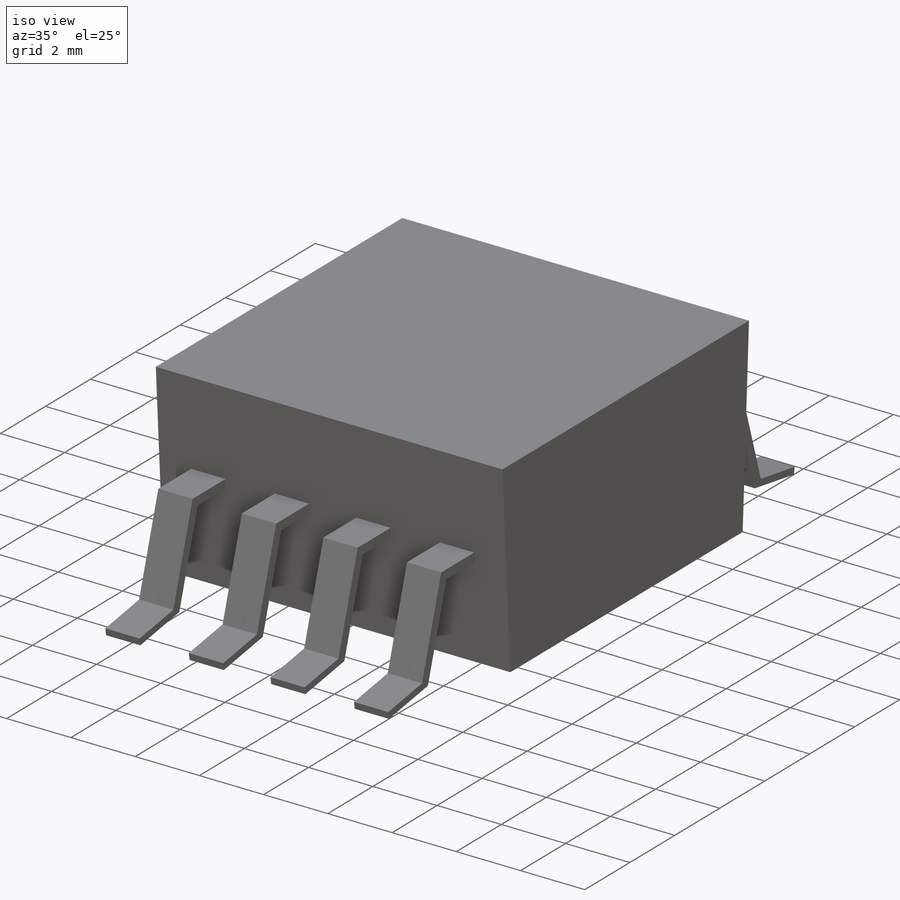
[diagram: iso view]
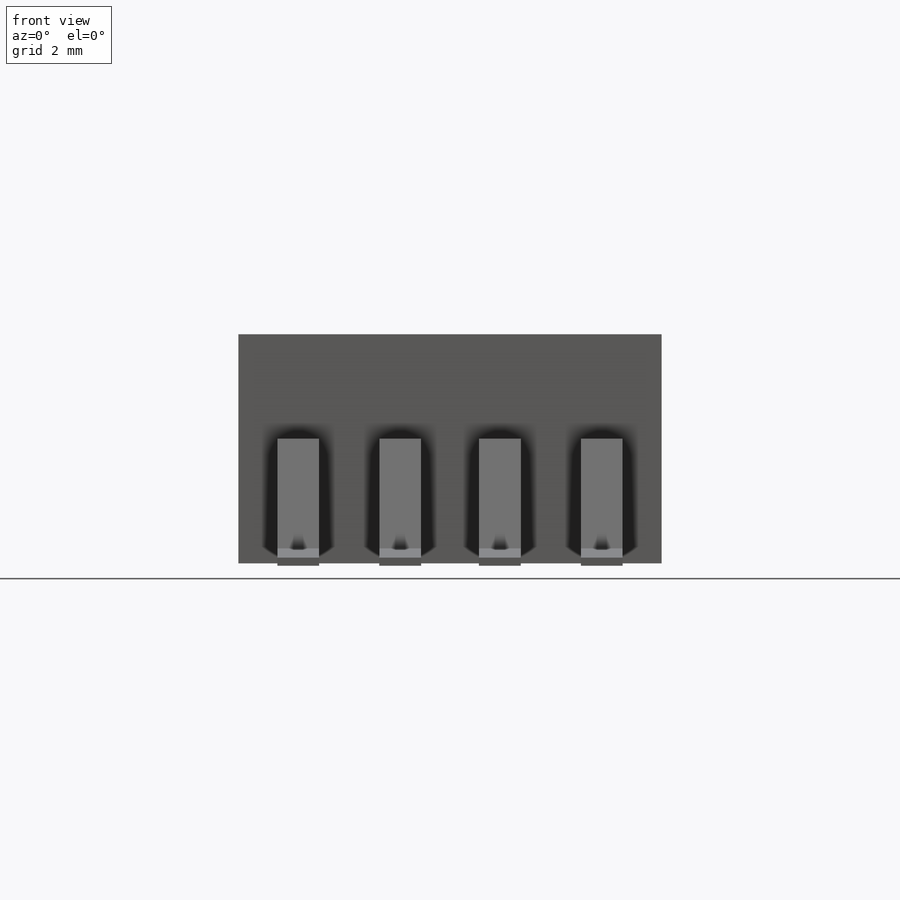
[diagram: front view]
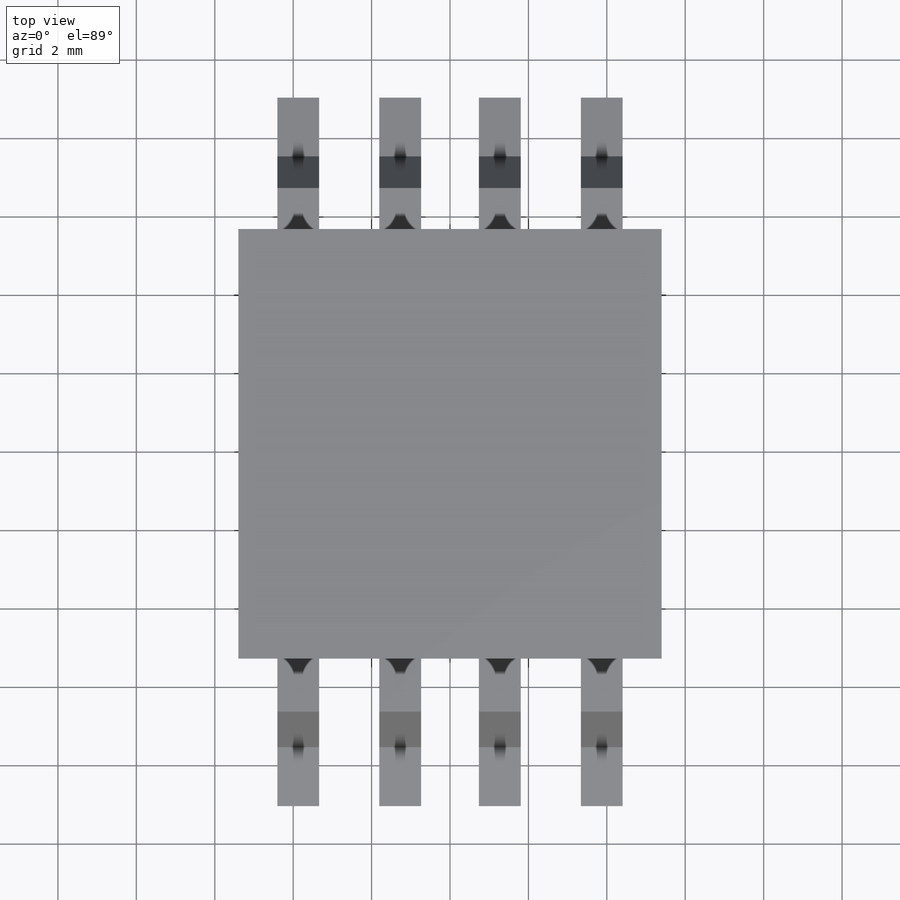
[diagram: top view]
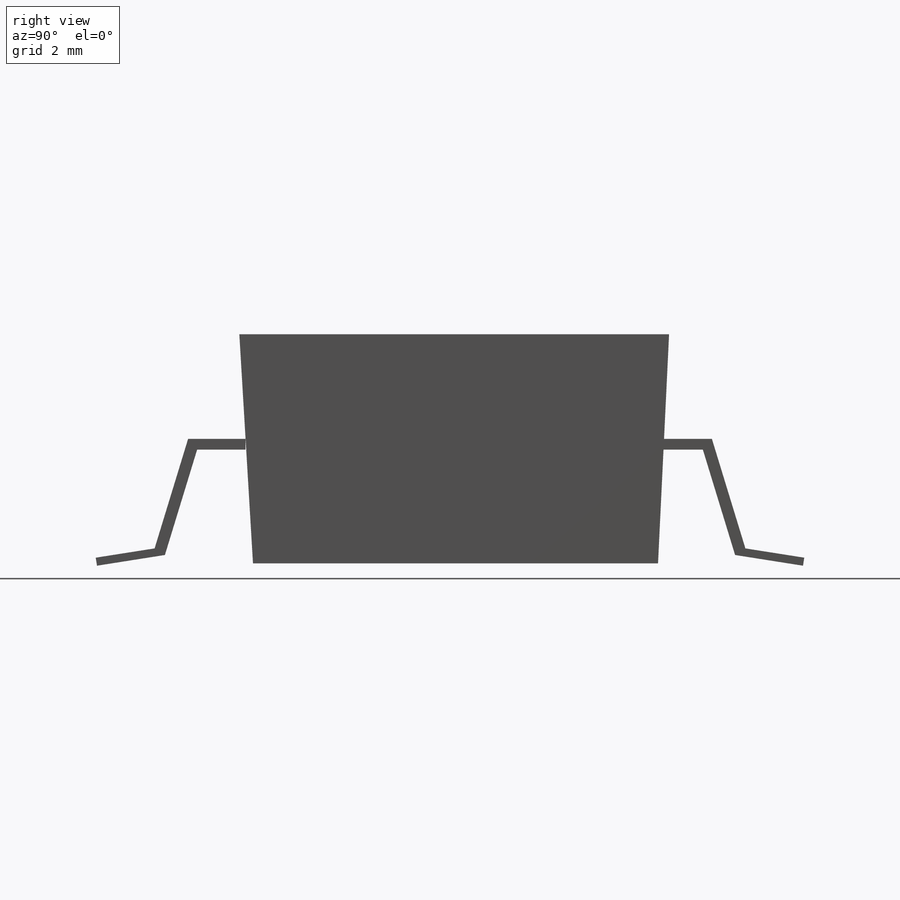
[diagram: right view]
SOLIDWORKS PART (.sldprt)
format: sldprt  version: not decoded by parser v0  size: 857,600 bytes
history: native  units: mm
features: sketch x5, extrude x2, material x1, cut_extrude x1, revolve x1 (+14 scaffold rows collapsed)
feature tree (24):
  scaffold x14  (default folders/planes/origin — collapsed)
  material  "Material <not specified>"
  sketch  "Sketch1"  dims[D1=3.175mm D2=6.477mm D3=13.208mm]
  sketch  "Sketch4"  dims[D1=0.0mm]
  extrude  "Extrude2"  Depth=10.795mm
  sketch  "Sketch5"  dims[D1=~2.601213mm D2=1.27mm D3=1.0668mm]
  cut_extrude  "Extrude3"  [1 undecoded]
  sketch  "Sketch2"  dims[D2=5.842mm D1=0.0mm]
  extrude  "Extrude1"  Depth=10.795mm
  sketch  "Sketch3"  dims[D2=0.762mm D3=0.762mm D1=0.0mm]
  revolve  "Revolve1"  Angle=360deg
decode coverage: 8 of 9 modeling features carry decoded parameters
note: ~ marks probable driven/reference dimensions
note: 1 parameter value undecoded
note: suppression state not decoded; provenance and decode notes live in map.json
